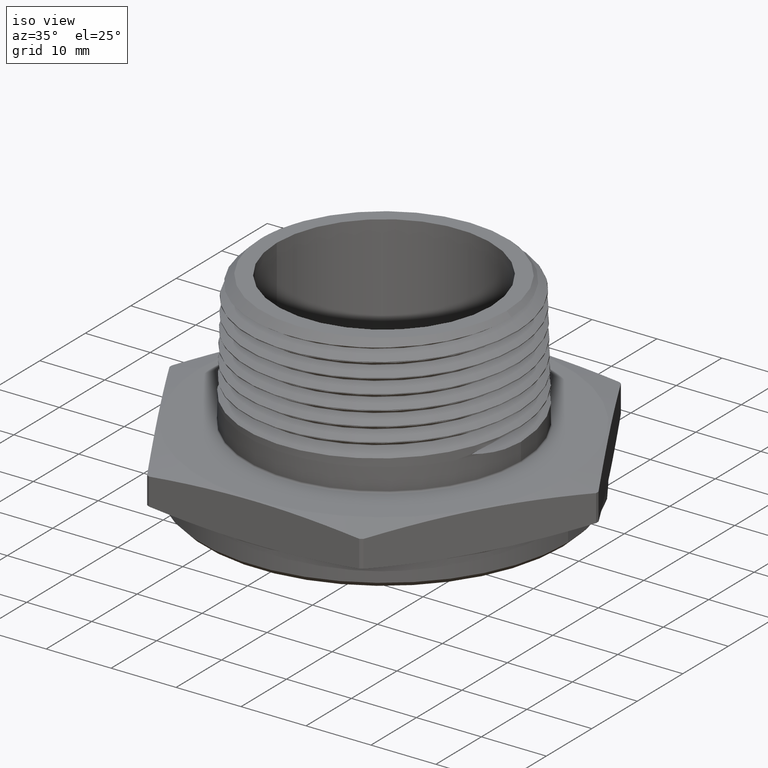
[diagram: clean part render]
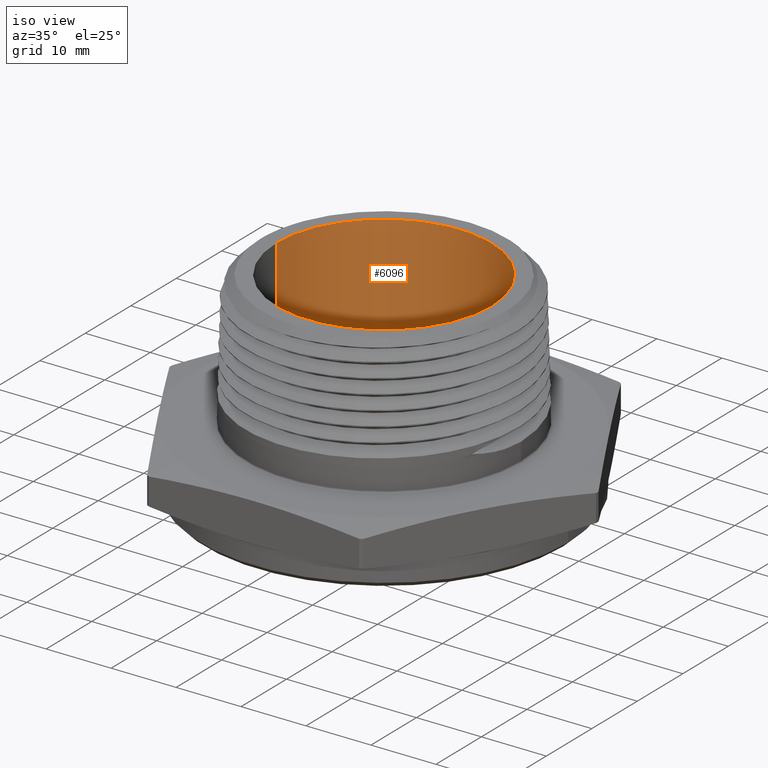
[diagram: same view with one face highlighted and labeled with its STEP entity id]
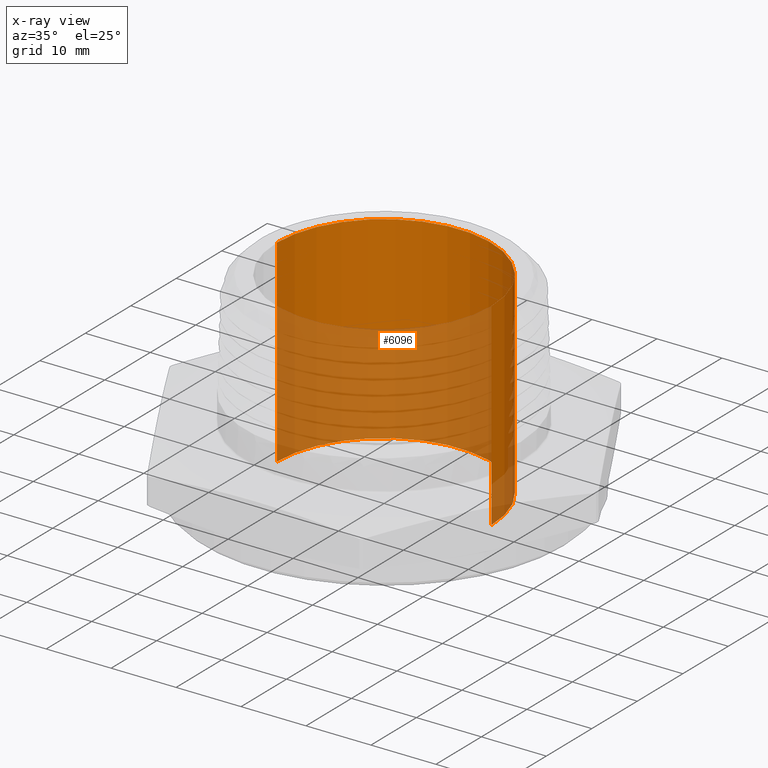
[diagram: x-ray of the same camera — body ghosted, the highlighted face saturated]
A machine part, iso view. The second image highlights one B-rep face of the part: STEP entity #6096.
The next image is the same camera in x-ray: the body ghosted, the highlighted face saturated — about 52% of this face is hidden behind the body in this view.
In plain terms, the highlighted cylindrical surface (partial cylindrical patch) has radius 16.51 mm, axis along (0, 0, -1).
Its self-contained STEP definition (entity closure, byte-faithful):
#4 = ORIENTED_EDGE ( 'NONE', *, *, #4548, .F. ) ;
#5 = ORIENTED_EDGE ( 'NONE', *, *, #4469, .F. ) ;
#6 = ORIENTED_EDGE ( 'NONE', *, *, #4543, .T. ) ;
#7 = ORIENTED_EDGE ( 'NONE', *, *, #4470, .T. ) ;
#94 = CIRCLE ( 'NONE', #4574, 0.6500000000000000200 ) ;
#95 = CIRCLE ( 'NONE', #4575, 0.6500000000000000200 ) ;
#155 = LINE ( 'NONE', #4825, #157 ) ;
#157 = VECTOR ( 'NONE', #4832, 39.37007874015748100 ) ;
#162 = LINE ( 'NONE', #4844, #164 ) ;
#164 = VECTOR ( 'NONE', #4845, 39.37007874015748100 ) ;
#221 = FACE_OUTER_BOUND ( 'NONE', #6001, .T. ) ;
#224 = CYLINDRICAL_SURFACE ( 'NONE', #4628, 0.6500000000000000200 ) ;
#286 = CARTESIAN_POINT ( 'NONE',  ( -0.6500000000000000200, 0.0000000000000000000, 1.050000000000000000 ) ) ;
#287 = CARTESIAN_POINT ( 'NONE',  ( -0.6500000000000000200, 0.0000000000000000000, -0.1499999999999999900 ) ) ;
#774 = DIRECTION ( 'NONE',  ( 0.0000000000000000000, 0.0000000000000000000, -1.000000000000000000 ) ) ;
#775 = DIRECTION ( 'NONE',  ( -1.000000000000000000, 0.0000000000000000000, 0.0000000000000000000 ) ) ;
#778 = CARTESIAN_POINT ( 'NONE',  ( 3.673940397442165500E-018, 0.0000000000000000000, 2.973330444827409400 ) ) ;
#4183 = VERTEX_POINT ( 'NONE', #7628 ) ;
#4184 = VERTEX_POINT ( 'NONE', #7629 ) ;
#4187 = VERTEX_POINT ( 'NONE', #287 ) ;
#4189 = VERTEX_POINT ( 'NONE', #286 ) ;
#4469 = EDGE_CURVE ( 'NONE', #4189, #4183, #94, .T. ) ;
#4470 = EDGE_CURVE ( 'NONE', #4187, #4184, #95, .T. ) ;
#4543 = EDGE_CURVE ( 'NONE', #4189, #4187, #155, .T. ) ;
#4548 = EDGE_CURVE ( 'NONE', #4183, #4184, #162, .T. ) ;
#4574 = AXIS2_PLACEMENT_3D ( 'NONE', #6355, #6356, #6357 ) ;
#4575 = AXIS2_PLACEMENT_3D ( 'NONE', #6358, #6359, #6360 ) ;
#4628 = AXIS2_PLACEMENT_3D ( 'NONE', #778, #774, #775 ) ;
#4825 = CARTESIAN_POINT ( 'NONE',  ( -0.6500000000000000200, 0.0000000000000000000, 2.973330444827409400 ) ) ;
#4832 = DIRECTION ( 'NONE',  ( 0.0000000000000000000, 0.0000000000000000000, -1.000000000000000000 ) ) ;
#4844 = CARTESIAN_POINT ( 'NONE',  ( 0.6500000000000000200, 7.960204194457796700E-017, 2.973330444827409400 ) ) ;
#4845 = DIRECTION ( 'NONE',  ( 0.0000000000000000000, 0.0000000000000000000, -1.000000000000000000 ) ) ;
#6001 = EDGE_LOOP ( 'NONE', ( #4, #5, #6, #7 ) ) ;
#6096 = ADVANCED_FACE ( 'NONE', ( #221 ), #224, .F. ) ;
#6355 = CARTESIAN_POINT ( 'NONE',  ( 3.673940397442165500E-018, 0.0000000000000000000, 1.050000000000000000 ) ) ;
#6356 = DIRECTION ( 'NONE',  ( -0.0000000000000000000, -0.0000000000000000000, -1.000000000000000000 ) ) ;
#6357 = DIRECTION ( 'NONE',  ( 1.000000000000000000, 0.0000000000000000000, 0.0000000000000000000 ) ) ;
#6358 = CARTESIAN_POINT ( 'NONE',  ( 3.673940397442165500E-018, 0.0000000000000000000, -0.1499999999999999900 ) ) ;
#6359 = DIRECTION ( 'NONE',  ( 0.0000000000000000000, 0.0000000000000000000, -1.000000000000000000 ) ) ;
#6360 = DIRECTION ( 'NONE',  ( -1.000000000000000000, 0.0000000000000000000, 0.0000000000000000000 ) ) ;
#7628 = CARTESIAN_POINT ( 'NONE',  ( 0.6500000000000000200, 7.960204194457796700E-017, 1.050000000000000000 ) ) ;
#7629 = CARTESIAN_POINT ( 'NONE',  ( 0.6500000000000000200, 7.960204194457796700E-017, -0.1499999999999999900 ) ) ;